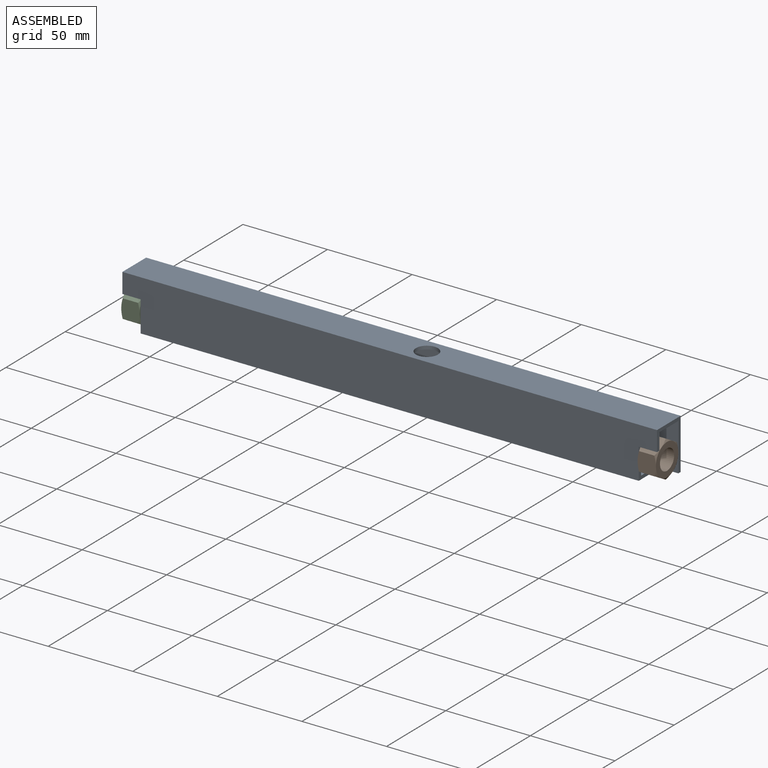
[diagram: assembled view]
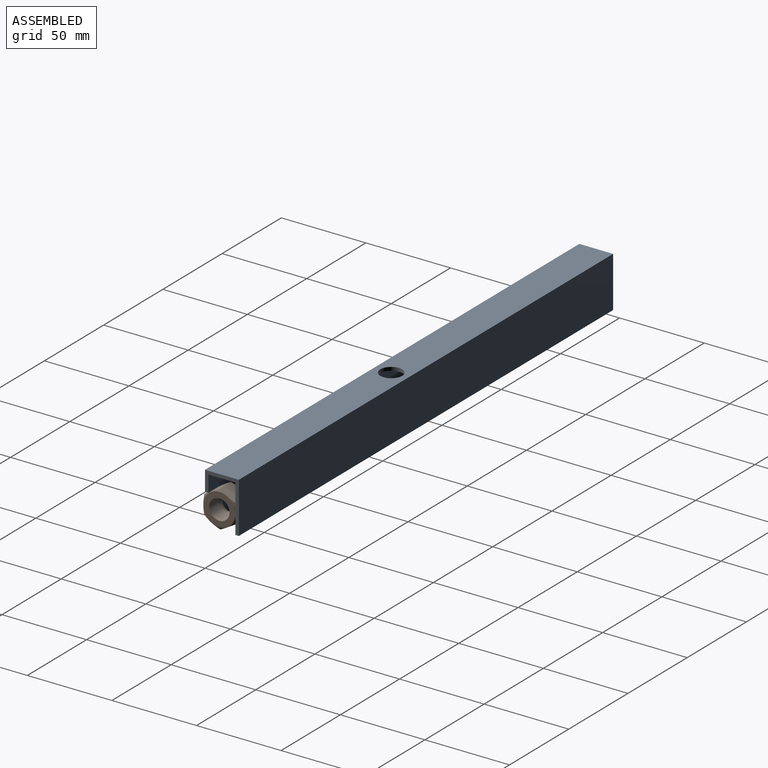
[diagram: assembled view, second angle]
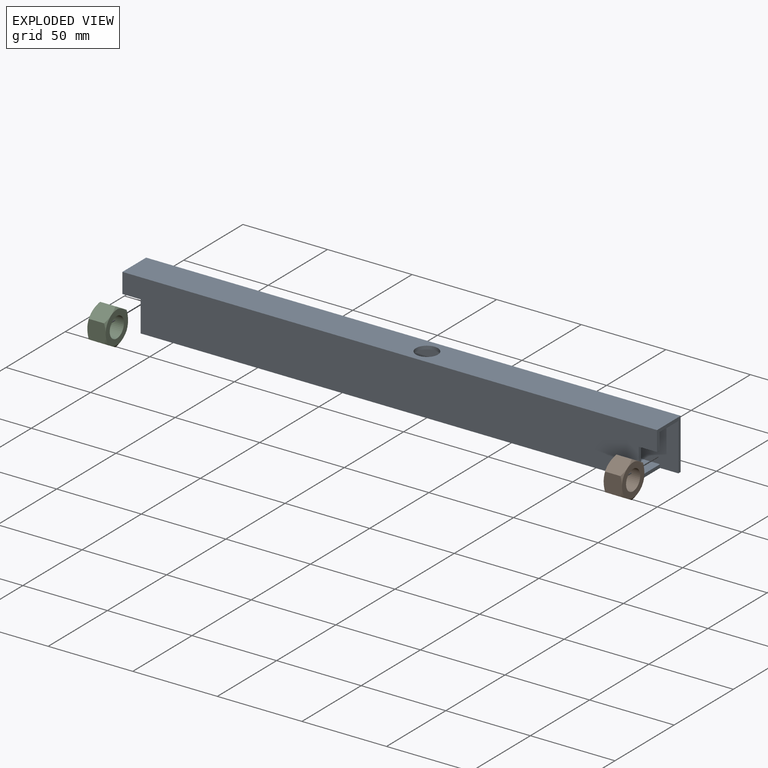
[diagram: exploded view]
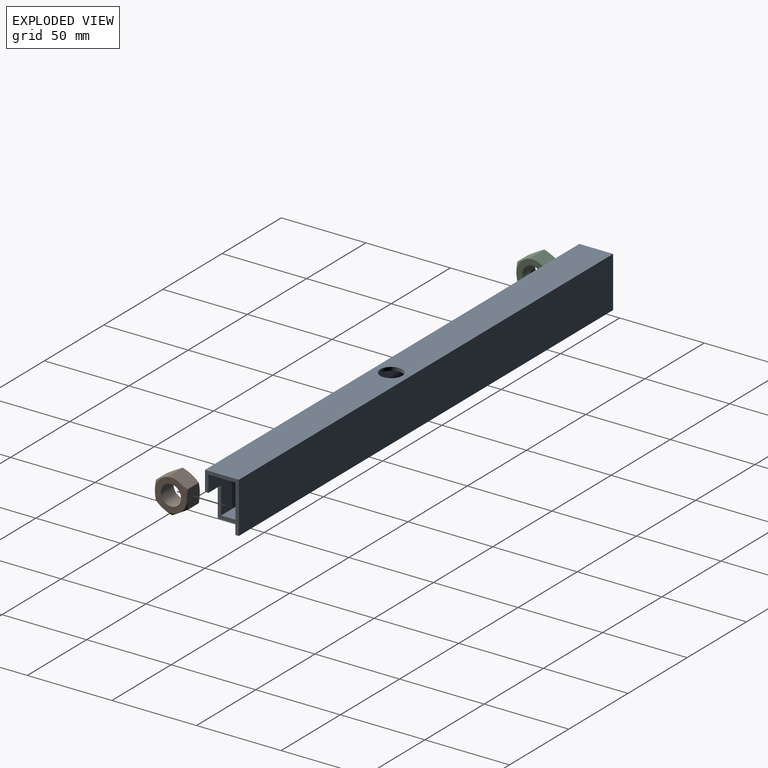
[diagram: exploded view, second angle]
ASSEMBLY  parts=3 mates=2
PART A: 18 faces, bbox 316x20x30 mm
  f0: plane 30x20mm, normal (1,0,0), area 115.6mm2, adj f1,f4,f5,f6,f7,f8,f9,f14
  f1: plane 316x20mm, normal (0,0,-1), area 5798.5mm2, adj f0,f2,f4,f6,f8,f9,f10,f12
  f2: plane 30x20mm, normal (-1,0,0), area 115.6mm2, adj f1,f4,f5,f6,f7,f8,f9,f17
  f3: plane 294.4x16mm, normal (0,0,1), area 4577.7mm2, adj f4,f6,f10,f12,f13
  f4: plane 316x28mm, normal (0,1,0), area 7866.6mm2, adj f0,f1,f2,f3,f5,f12,f13,f14
  f5: plane 316x16mm, normal (0,0,-1), area 4923.3mm2, adj f0,f2,f4,f6,f11
  f6: plane 316x28mm, normal (0,-1,0), area 8259.2mm2, adj f0,f1,f2,f3,f5,f12,f13
  f7: plane 316x20mm, normal (0,0,1), area 6187.3mm2, adj f0,f2,f8,f9,f11
  f8: plane 316x30mm, normal (0,-1,0), area 9087.4mm2, adj f0,f1,f2,f7,f14,f15,f16,f17
  f9: plane 316x30mm, normal (0,1,0), area 9480mm2, adj f0,f1,f2,f7
  f10: cylinder r=6.5mm len=13mm, axis (0,0,1), area 81.7mm2, adj f1,f3
  f11: cylinder r=6.5mm len=13mm, axis (0,0,1), area 81.7mm2, adj f5,f7
  f12: plane 16x2mm, normal (1,0,0), area 32mm2, adj f1,f3,f4,f6
  f13: plane 16x2mm, normal (-1,0,0), area 32mm2, adj f1,f3,f4,f6
  f14: plane 10.78x2mm, normal (0,0,-1), area 21.6mm2, adj f0,f4,f8,f15
  f15: plane 18.21x2mm, normal (1,0,0), area 36.4mm2, adj f1,f4,f8,f14
  f16: plane 18.21x2mm, normal (-1,0,0), area 36.4mm2, adj f1,f4,f8,f17
  f17: plane 10.78x2mm, normal (0,0,-1), area 21.6mm2, adj f2,f4,f8,f16
PART B: 11 faces, bbox 10.8x21.9x21.9 mm
  f0: plane 18.94x18.94mm, normal (1,0,0), area 168.6mm2, adj f1,f4
  f1: cylinder r=6mm len=12mm, axis (-1,0,0), area 407.2mm2, adj f0,f2
  f2: plane 18.94x18.94mm, normal (-1,0,0), area 168.6mm2, adj f1,f3
  f3: cone r=9.47mm half-angle=60deg, axis (1,0,0), area 35.7mm2, adj f2,f5,f6,f7,f8,f9,f10
  f4: cone r=9.47mm half-angle=60deg, axis (-1,0,0), area 35.7mm2, adj f0,f5,f6,f7,f8,f9,f10
  f5: plane 10.77x9.5mm, normal (0,-0.87,-0.5), area 111.7mm2, adj f3,f4,f6,f10
  f6: plane 10.77x9.5mm, normal (0,-0.87,0.5), area 111.7mm2, adj f3,f4,f5,f7
  f7: plane 10.98x10.77mm, normal (0,0,1), area 111.7mm2, adj f3,f4,f6,f8
  f8: plane 10.77x9.5mm, normal (0,0.87,0.5), area 111.7mm2, adj f3,f4,f7,f9
  f9: plane 10.77x9.5mm, normal (0,0.87,-0.5), area 111.7mm2, adj f3,f4,f8,f10
  f10: plane 10.98x10.77mm, normal (0,0,-1), area 111.7mm2, adj f3,f4,f5,f9
PART C: same geometry as B
PLACE A t=(-3.13,-67.18,29.61)mm
PLACE B rot(axis=(-1,0,0),30deg) t=(-13.93,-58.68,40.63)mm
PLACE C rot(axis=(0,0.26,0.97),180deg) t=(-308.33,-58.68,40.6)mm
MATE fastened B.f8 <-> A.f6  axis (0,1,0) through (-3.15,-49.18,40.61)mm
MATE fastened C.f6 <-> A.f6  axis (0,1,0) through (-319.11,-49.18,40.61)mm
